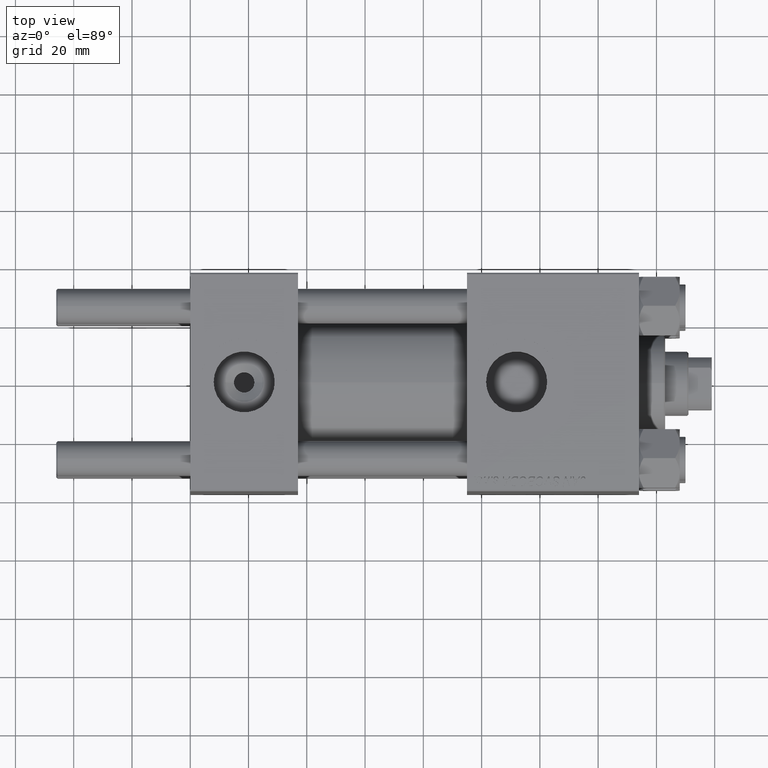
[diagram: clean part render]
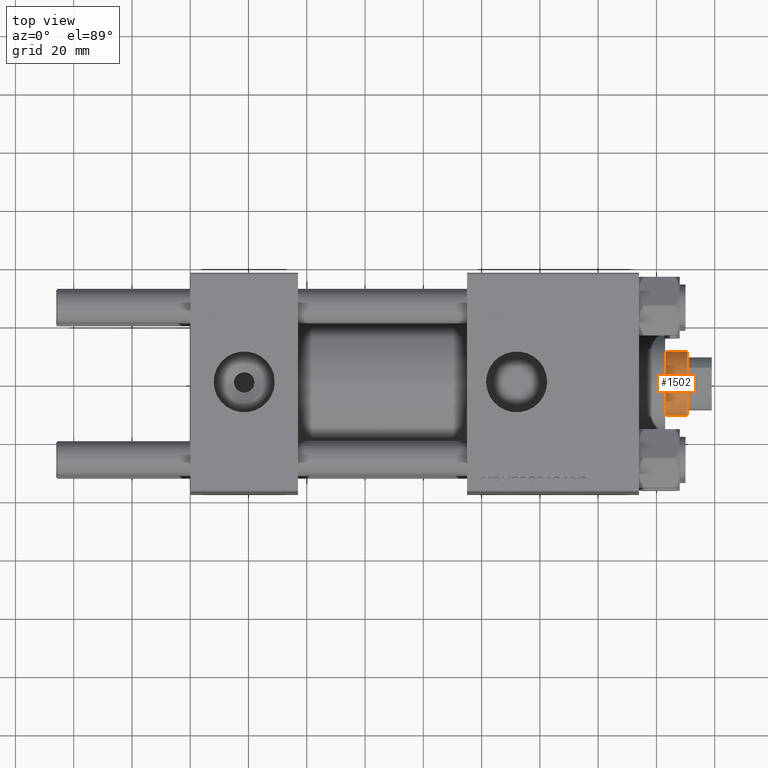
[diagram: same view with one face highlighted and labeled with its STEP entity id]
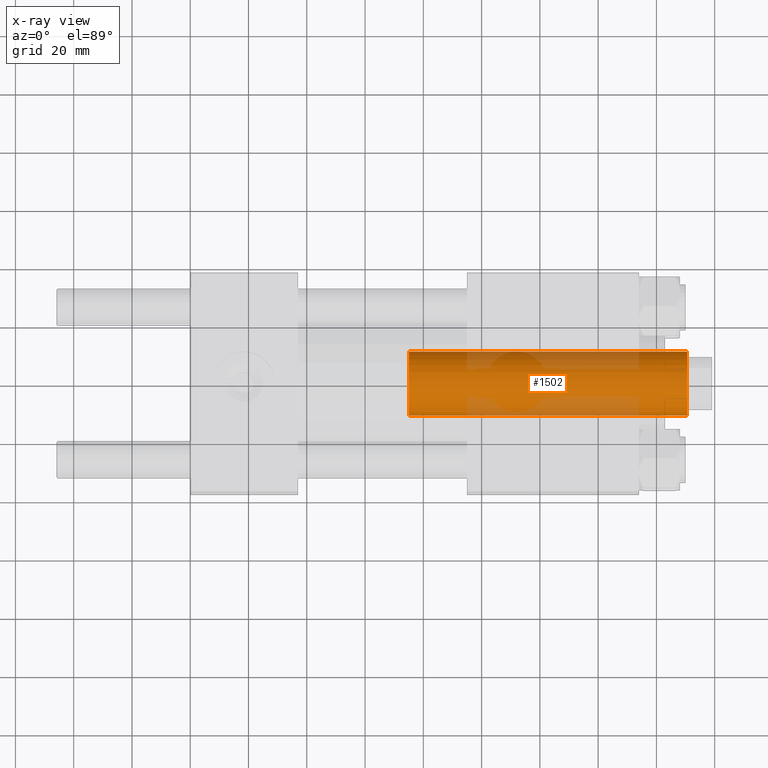
[diagram: x-ray of the same camera — body ghosted, the highlighted face saturated]
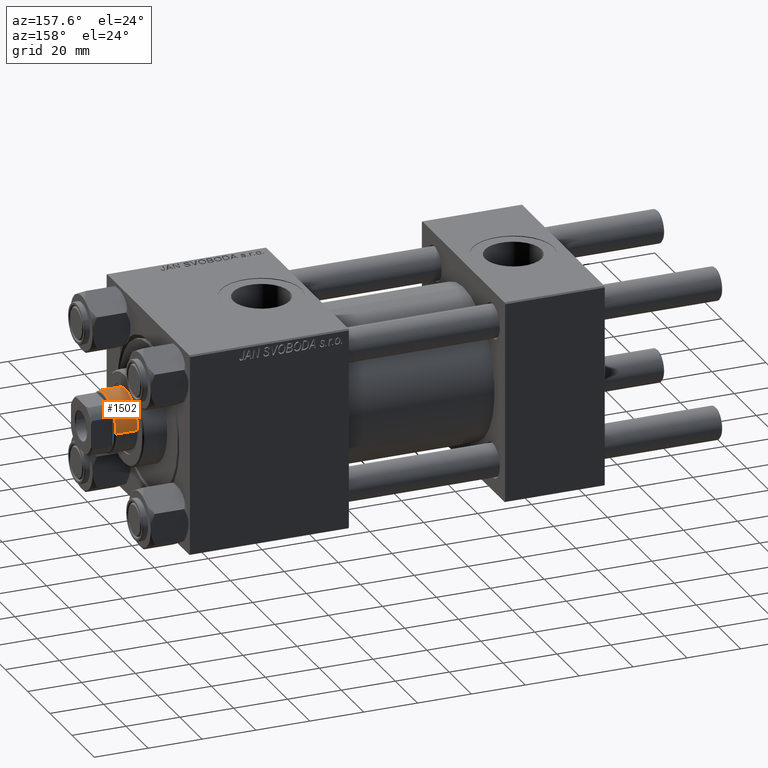
[diagram: same view with one face highlighted and labeled with its STEP entity id]
A machine part, top view. The second image highlights one B-rep face of the part: STEP entity #1502.
The next image is the same camera in x-ray: the body ghosted, the highlighted face saturated — about 28% of this face is hidden behind the body in this view.
A second angle (auxiliary view) of the same face is appended — the face is thin or edge-on in the first view.
In plain terms, the highlighted cylindrical surface (edge-blend (fillet) strip) has radius 11 mm, axis along (-1, 0, 0).
Its self-contained STEP definition (entity closure, byte-faithful):
#166 = VECTOR ( 'NONE', #20845, 1000.000000000000000 ) ;
#497 = CARTESIAN_POINT ( 'NONE',  ( -11.00000000000000000, 0.000000000000000000, 38.00000000000000000 ) ) ;
#1502 = ADVANCED_FACE ( 'NONE', ( #46854 ), #10458, .T. ) ;
#3115 = EDGE_LOOP ( 'NONE', ( #48056, #13947, #40510, #10914 ) ) ;
#4474 = DIRECTION ( 'NONE',  ( 0.000000000000000000, 0.000000000000000000, -1.000000000000000000 ) ) ;
#4818 = DIRECTION ( 'NONE',  ( 0.000000000000000000, 0.000000000000000000, 1.000000000000000000 ) ) ;
#4873 = EDGE_CURVE ( 'NONE', #19237, #29337, #5432, .T. ) ;
#5432 = LINE ( 'NONE', #33426, #35994 ) ;
#6781 = DIRECTION ( 'NONE',  ( -1.000000000000000000, 0.000000000000000000, 0.000000000000000000 ) ) ;
#7794 = CIRCLE ( 'NONE', #46300, 11.00000000000000000 ) ;
#10458 = CYLINDRICAL_SURFACE ( 'NONE', #47596, 11.00000000000000000 ) ;
#10533 = VERTEX_POINT ( 'NONE', #21928 ) ;
#10869 = EDGE_CURVE ( 'NONE', #10533, #29194, #41012, .T. ) ;
#10914 = ORIENTED_EDGE ( 'NONE', *, *, #16449, .T. ) ;
#13947 = ORIENTED_EDGE ( 'NONE', *, *, #34596, .T. ) ;
#14380 = DIRECTION ( 'NONE',  ( -0.000000000000000000, -0.000000000000000000, -1.000000000000000000 ) ) ;
#15467 = CARTESIAN_POINT ( 'NONE',  ( 0.000000000000000000, 0.000000000000000000, 133.5000000000000000 ) ) ;
#16449 = EDGE_CURVE ( 'NONE', #29194, #29337, #7794, .T. ) ;
#19237 = VERTEX_POINT ( 'NONE', #43674 ) ;
#19842 = AXIS2_PLACEMENT_3D ( 'NONE', #15467, #4474, #48459 ) ;
#20777 = DIRECTION ( 'NONE',  ( 1.000000000000000000, 0.000000000000000000, 0.000000000000000000 ) ) ;
#20845 = DIRECTION ( 'NONE',  ( -0.000000000000000000, -0.000000000000000000, -1.000000000000000000 ) ) ;
#21392 = DIRECTION ( 'NONE',  ( -0.000000000000000000, -0.000000000000000000, -1.000000000000000000 ) ) ;
#21928 = CARTESIAN_POINT ( 'NONE',  ( -11.00000000000000000, 0.000000000000000000, 133.5000000000000000 ) ) ;
#29194 = VERTEX_POINT ( 'NONE', #497 ) ;
#29337 = VERTEX_POINT ( 'NONE', #43353 ) ;
#30867 = CARTESIAN_POINT ( 'NONE',  ( 0.000000000000000000, 0.000000000000000000, 134.0000000000000000 ) ) ;
#32109 = CARTESIAN_POINT ( 'NONE',  ( -11.00000000000000000, 0.000000000000000000, 134.0000000000000000 ) ) ;
#33426 = CARTESIAN_POINT ( 'NONE',  ( 11.00000000000000000, 1.347111479062088405E-15, 134.0000000000000000 ) ) ;
#34596 = EDGE_CURVE ( 'NONE', #19237, #10533, #42450, .T. ) ;
#35994 = VECTOR ( 'NONE', #21392, 1000.000000000000000 ) ;
#40510 = ORIENTED_EDGE ( 'NONE', *, *, #10869, .T. ) ;
#40691 = CARTESIAN_POINT ( 'NONE',  ( 0.000000000000000000, 0.000000000000000000, 38.00000000000000000 ) ) ;
#41012 = LINE ( 'NONE', #32109, #166 ) ;
#42450 = CIRCLE ( 'NONE', #19842, 11.00000000000000000 ) ;
#43353 = CARTESIAN_POINT ( 'NONE',  ( 11.00000000000000000, 1.347111479062088405E-15, 38.00000000000000000 ) ) ;
#43674 = CARTESIAN_POINT ( 'NONE',  ( 11.00000000000000000, 1.347111479062088405E-15, 133.5000000000000000 ) ) ;
#46300 = AXIS2_PLACEMENT_3D ( 'NONE', #40691, #4818, #20777 ) ;
#46854 = FACE_OUTER_BOUND ( 'NONE', #3115, .T. ) ;
#47596 = AXIS2_PLACEMENT_3D ( 'NONE', #30867, #14380, #6781 ) ;
#48056 = ORIENTED_EDGE ( 'NONE', *, *, #4873, .F. ) ;
#48459 = DIRECTION ( 'NONE',  ( 1.000000000000000000, 0.000000000000000000, 0.000000000000000000 ) ) ;